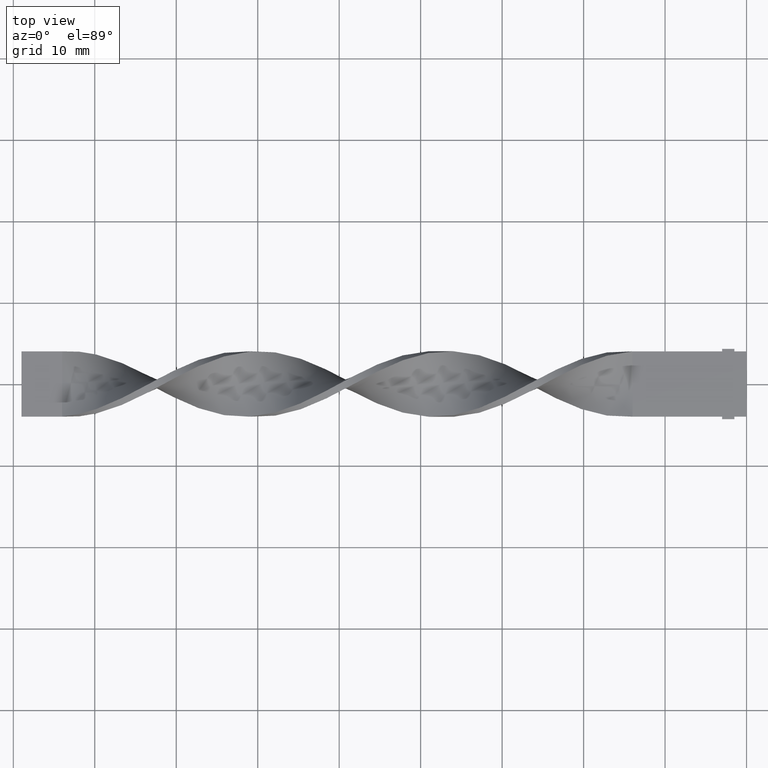
[diagram: clean part render]
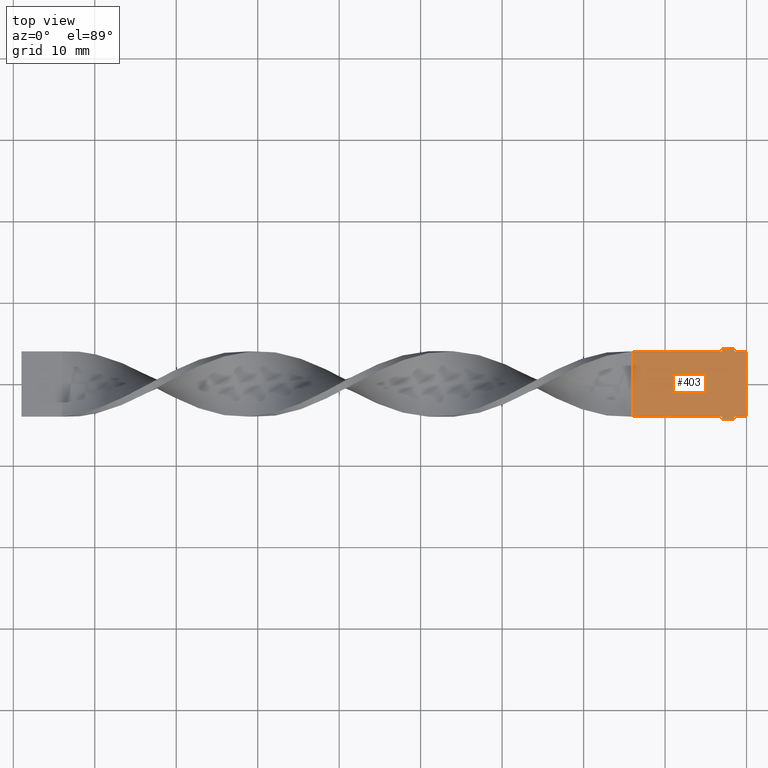
[diagram: same view with one face highlighted and labeled with its STEP entity id]
A machine part, top view. The second image highlights one B-rep face of the part: STEP entity #403.
In plain terms, the highlighted planar face has unit normal (0, 0, 1).
Its self-contained STEP definition (entity closure, byte-faithful):
#11 = DIRECTION ( 'NONE',  ( -1.000000000000000000, -1.577021341797097067E-16, 0.000000000000000000 ) ) ;
#19 = VERTEX_POINT ( 'NONE', #23 ) ;
#21 = LINE ( 'NONE', #514, #349 ) ;
#23 = CARTESIAN_POINT ( 'NONE',  ( -1.499999999999993783, -4.000000000000000000, 0.5000000000000000000 ) ) ;
#24 = LINE ( 'NONE', #1235, #755 ) ;
#25 = VERTEX_POINT ( 'NONE', #137 ) ;
#29 = CARTESIAN_POINT ( 'NONE',  ( -2.999999999999994671, 4.000000000000000000, 0.5000000000000000000 ) ) ;
#32 = ORIENTED_EDGE ( 'NONE', *, *, #297, .F. ) ;
#63 = LINE ( 'NONE', #914, #1426 ) ;
#70 = CARTESIAN_POINT ( 'NONE',  ( -2.999999999999993783, -4.299999999999999822, 0.5000000000000000000 ) ) ;
#88 = DIRECTION ( 'NONE',  ( 0.000000000000000000, 1.000000000000000000, 0.000000000000000000 ) ) ;
#109 = VERTEX_POINT ( 'NONE', #1157 ) ;
#132 = DIRECTION ( 'NONE',  ( 0.000000000000000000, 0.000000000000000000, 1.000000000000000000 ) ) ;
#137 = CARTESIAN_POINT ( 'NONE',  ( -2.999999999999994671, 4.299999999999999822, 0.5000000000000000000 ) ) ;
#142 = ORIENTED_EDGE ( 'NONE', *, *, #1212, .T. ) ;
#159 = VERTEX_POINT ( 'NONE', #252 ) ;
#199 = ORIENTED_EDGE ( 'NONE', *, *, #1580, .F. ) ;
#225 = ORIENTED_EDGE ( 'NONE', *, *, #1024, .T. ) ;
#252 = CARTESIAN_POINT ( 'NONE',  ( -2.999999999999994671, 4.000000000000000000, 0.5000000000000000000 ) ) ;
#258 = VECTOR ( 'NONE', #923, 1000.000000000000000 ) ;
#260 = DIRECTION ( 'NONE',  ( 0.000000000000000000, 1.000000000000000000, 0.000000000000000000 ) ) ;
#294 = CARTESIAN_POINT ( 'NONE',  ( -1.925929944387235853E-31, -4.000000000000000000, 0.5000000000000000000 ) ) ;
#297 = EDGE_CURVE ( 'NONE', #19, #1593, #456, .T. ) ;
#309 = ORIENTED_EDGE ( 'NONE', *, *, #1503, .F. ) ;
#318 = ORIENTED_EDGE ( 'NONE', *, *, #1559, .T. ) ;
#323 = LINE ( 'NONE', #1308, #1349 ) ;
#325 = CARTESIAN_POINT ( 'NONE',  ( -1.499999999999994893, 4.299999999999999822, 0.5000000000000000000 ) ) ;
#349 = VECTOR ( 'NONE', #1146, 1000.000000000000000 ) ;
#358 = ORIENTED_EDGE ( 'NONE', *, *, #1191, .F. ) ;
#372 = VECTOR ( 'NONE', #564, 1000.000000000000000 ) ;
#391 = PLANE ( 'NONE',  #836 ) ;
#403 = ADVANCED_FACE ( 'NONE', ( #1499 ), #391, .T. ) ;
#409 = VERTEX_POINT ( 'NONE', #1491 ) ;
#435 = VERTEX_POINT ( 'NONE', #874 ) ;
#456 = LINE ( 'NONE', #954, #603 ) ;
#458 = ORIENTED_EDGE ( 'NONE', *, *, #1003, .T. ) ;
#468 = ORIENTED_EDGE ( 'NONE', *, *, #1437, .T. ) ;
#500 = ORIENTED_EDGE ( 'NONE', *, *, #686, .T. ) ;
#514 = CARTESIAN_POINT ( 'NONE',  ( -9.797174393178827630E-16, 4.000000000000000000, 0.5000000000000000000 ) ) ;
#564 = DIRECTION ( 'NONE',  ( -1.224646799147353207E-16, 1.000000000000000000, 0.000000000000000000 ) ) ;
#566 = CARTESIAN_POINT ( 'NONE',  ( -2.999999999999994671, 4.299999999999999822, 0.5000000000000000000 ) ) ;
#582 = CARTESIAN_POINT ( 'NONE',  ( -1.925929944387235853E-31, -4.000000000000000000, 0.5000000000000000000 ) ) ;
#603 = VECTOR ( 'NONE', #1317, 1000.000000000000000 ) ;
#607 = CARTESIAN_POINT ( 'NONE',  ( -2.999999999999993783, -4.299999999999999822, 0.5000000000000000000 ) ) ;
#614 = CARTESIAN_POINT ( 'NONE',  ( -1.499999999999994893, 4.000000000000000000, 0.5000000000000000000 ) ) ;
#622 = DIRECTION ( 'NONE',  ( 1.000000000000000000, 0.000000000000000000, -0.000000000000000000 ) ) ;
#623 = CARTESIAN_POINT ( 'NONE',  ( -13.99999999999999822, 3.999999999999998224, 0.5000000000000000000 ) ) ;
#629 = DIRECTION ( 'NONE',  ( -1.000000000000000000, 0.000000000000000000, 0.000000000000000000 ) ) ;
#686 = EDGE_CURVE ( 'NONE', #25, #159, #1558, .T. ) ;
#713 = VERTEX_POINT ( 'NONE', #582 ) ;
#734 = CARTESIAN_POINT ( 'NONE',  ( 0.000000000000000000, 0.000000000000000000, 0.5000000000000000000 ) ) ;
#735 = DIRECTION ( 'NONE',  ( 2.168404344971008868E-16, -1.000000000000000000, 0.000000000000000000 ) ) ;
#755 = VECTOR ( 'NONE', #629, 1000.000000000000000 ) ;
#780 = VERTEX_POINT ( 'NONE', #1443 ) ;
#785 = DIRECTION ( 'NONE',  ( -1.000000000000000000, -1.577021341797097067E-16, 0.000000000000000000 ) ) ;
#788 = EDGE_CURVE ( 'NONE', #1373, #435, #948, .T. ) ;
#803 = LINE ( 'NONE', #294, #372 ) ;
#808 = VECTOR ( 'NONE', #735, 1000.000000000000000 ) ;
#836 = AXIS2_PLACEMENT_3D ( 'NONE', #734, #132, #622 ) ;
#874 = CARTESIAN_POINT ( 'NONE',  ( -2.999999999999993783, -4.000000000000000000, 0.5000000000000000000 ) ) ;
#879 = EDGE_LOOP ( 'NONE', ( #199, #142, #225, #318, #933, #500, #458, #468, #358, #1441, #309, #32 ) ) ;
#888 = VECTOR ( 'NONE', #260, 1000.000000000000000 ) ;
#914 = CARTESIAN_POINT ( 'NONE',  ( -2.999999999999993783, -4.000000000000000000, 0.5000000000000000000 ) ) ;
#923 = DIRECTION ( 'NONE',  ( -1.000000000000000000, 0.000000000000000000, 0.000000000000000000 ) ) ;
#933 = ORIENTED_EDGE ( 'NONE', *, *, #1119, .T. ) ;
#948 = LINE ( 'NONE', #607, #987 ) ;
#954 = CARTESIAN_POINT ( 'NONE',  ( -1.499999999999993783, -4.000000000000000000, 0.5000000000000000000 ) ) ;
#987 = VECTOR ( 'NONE', #88, 1000.000000000000000 ) ;
#1003 = EDGE_CURVE ( 'NONE', #159, #1086, #1517, .T. ) ;
#1024 = EDGE_CURVE ( 'NONE', #780, #109, #21, .T. ) ;
#1035 = LINE ( 'NONE', #1304, #258 ) ;
#1044 = CARTESIAN_POINT ( 'NONE',  ( -13.99999999999999822, 3.999999999999998224, 0.5000000000000000000 ) ) ;
#1086 = VERTEX_POINT ( 'NONE', #1044 ) ;
#1105 = LINE ( 'NONE', #614, #888 ) ;
#1119 = EDGE_CURVE ( 'NONE', #1210, #25, #1035, .T. ) ;
#1146 = DIRECTION ( 'NONE',  ( -1.000000000000000000, 0.000000000000000000, 0.000000000000000000 ) ) ;
#1157 = CARTESIAN_POINT ( 'NONE',  ( -1.499999999999994893, 4.000000000000000000, 0.5000000000000000000 ) ) ;
#1191 = EDGE_CURVE ( 'NONE', #435, #409, #63, .T. ) ;
#1210 = VERTEX_POINT ( 'NONE', #325 ) ;
#1212 = EDGE_CURVE ( 'NONE', #713, #780, #803, .T. ) ;
#1235 = CARTESIAN_POINT ( 'NONE',  ( -1.925929944387235853E-31, -4.000000000000000000, 0.5000000000000000000 ) ) ;
#1248 = VECTOR ( 'NONE', #1425, 1000.000000000000000 ) ;
#1304 = CARTESIAN_POINT ( 'NONE',  ( -1.499999999999994893, 4.299999999999999822, 0.5000000000000000000 ) ) ;
#1308 = CARTESIAN_POINT ( 'NONE',  ( -1.499999999999993783, -4.299999999999999822, 0.5000000000000000000 ) ) ;
#1317 = DIRECTION ( 'NONE',  ( 0.000000000000000000, -1.000000000000000000, 0.000000000000000000 ) ) ;
#1349 = VECTOR ( 'NONE', #1436, 1000.000000000000000 ) ;
#1373 = VERTEX_POINT ( 'NONE', #70 ) ;
#1399 = VECTOR ( 'NONE', #11, 1000.000000000000000 ) ;
#1425 = DIRECTION ( 'NONE',  ( 0.000000000000000000, -1.000000000000000000, 0.000000000000000000 ) ) ;
#1426 = VECTOR ( 'NONE', #785, 1000.000000000000000 ) ;
#1436 = DIRECTION ( 'NONE',  ( -1.000000000000000000, 0.000000000000000000, 0.000000000000000000 ) ) ;
#1437 = EDGE_CURVE ( 'NONE', #1086, #409, #1500, .T. ) ;
#1441 = ORIENTED_EDGE ( 'NONE', *, *, #788, .F. ) ;
#1443 = CARTESIAN_POINT ( 'NONE',  ( -9.797174393178827630E-16, 4.000000000000000000, 0.5000000000000000000 ) ) ;
#1491 = CARTESIAN_POINT ( 'NONE',  ( -13.99999999999999645, -4.000000000000001776, 0.5000000000000000000 ) ) ;
#1499 = FACE_OUTER_BOUND ( 'NONE', #879, .T. ) ;
#1500 = LINE ( 'NONE', #623, #808 ) ;
#1503 = EDGE_CURVE ( 'NONE', #1593, #1373, #323, .T. ) ;
#1517 = LINE ( 'NONE', #29, #1399 ) ;
#1558 = LINE ( 'NONE', #566, #1248 ) ;
#1559 = EDGE_CURVE ( 'NONE', #109, #1210, #1105, .T. ) ;
#1580 = EDGE_CURVE ( 'NONE', #713, #19, #24, .T. ) ;
#1593 = VERTEX_POINT ( 'NONE', #1614 ) ;
#1614 = CARTESIAN_POINT ( 'NONE',  ( -1.499999999999993783, -4.299999999999999822, 0.5000000000000000000 ) ) ;